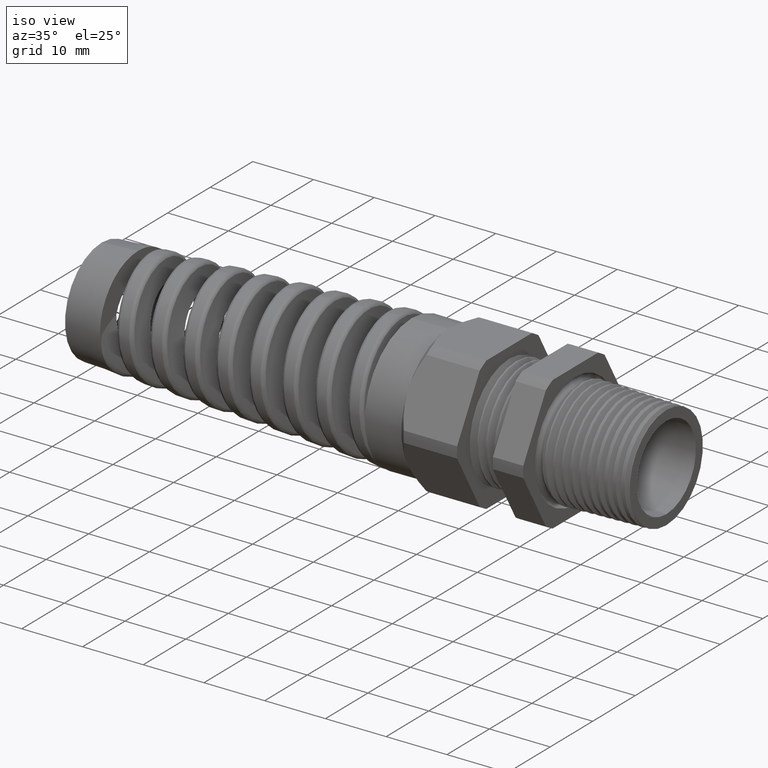
[diagram: clean part render]
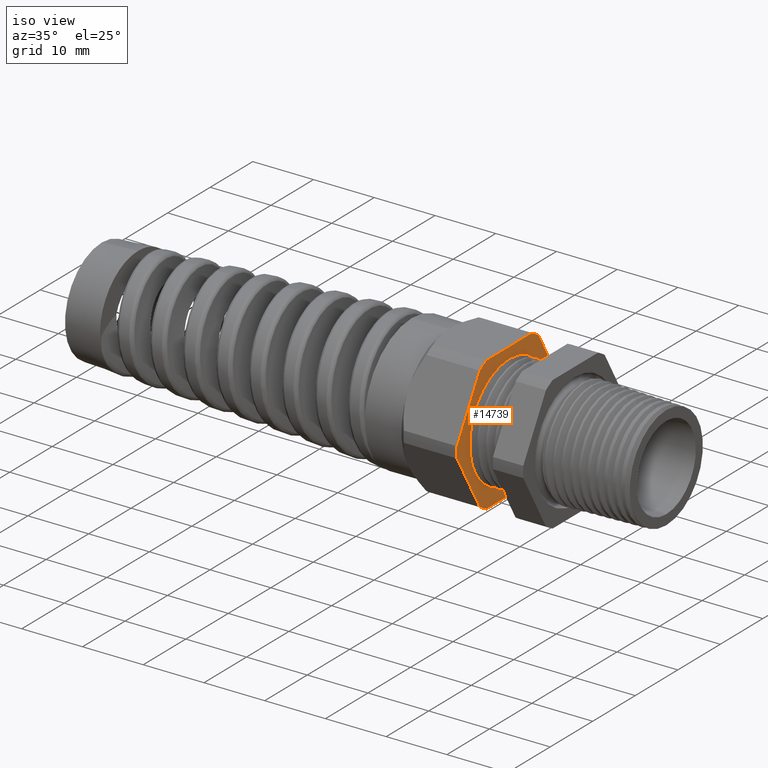
[diagram: same view with one face highlighted and labeled with its STEP entity id]
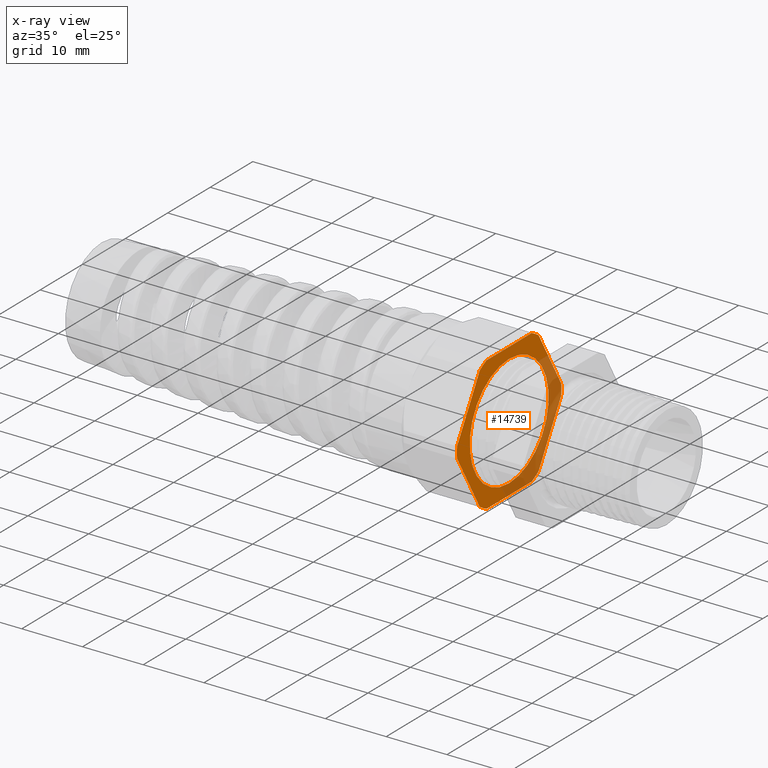
[diagram: x-ray of the same camera — body ghosted, the highlighted face saturated]
A machine part, iso view. The second image highlights one B-rep face of the part: STEP entity #14739.
The next image is the same camera in x-ray: the body ghosted, the highlighted face saturated — about 37% of this face is hidden behind the body in this view.
In plain terms, the highlighted planar face has unit normal (1, 0, 0).
Its self-contained STEP definition (entity closure, byte-faithful):
#549 = CARTESIAN_POINT ( 'NONE',  ( -0.7388188976377951800, 0.4679710506462308500, -0.05945036380933996900 ) ) ;
#550 = LINE ( 'NONE', #549, #812 ) ;
#576 = DIRECTION ( 'NONE',  ( 0.0000000000000000000, 0.0000000000000000000, -1.000000000000000000 ) ) ;
#577 = DIRECTION ( 'NONE',  ( 1.000000000000000000, 0.0000000000000000000, 0.0000000000000000000 ) ) ;
#578 = AXIS2_PLACEMENT_3D ( 'NONE', #581, #577, #576 ) ;
#579 = CIRCLE ( 'NONE', #578, 0.4828500000000000600 ) ;
#581 = CARTESIAN_POINT ( 'NONE',  ( -0.7388188976377951800, 0.0000000000000000000, 0.0000000000000000000 ) ) ;
#589 = CARTESIAN_POINT ( 'NONE',  ( -0.7388188976377951800, 0.2719366022533514200, 0.3989919884595460900 ) ) ;
#600 = DIRECTION ( 'NONE',  ( 0.0000000000000000000, -1.000000000000000000, 0.0000000000000000000 ) ) ;
#601 = VECTOR ( 'NONE', #600, 39.37007874015748100 ) ;
#608 = CARTESIAN_POINT ( 'NONE',  ( -0.7388188976377951800, 0.3649999999999999400, 0.4350000000000000000 ) ) ;
#609 = LINE ( 'NONE', #608, #601 ) ;
#622 = DIRECTION ( 'NONE',  ( 0.0000000000000000000, 0.0000000000000000000, -1.000000000000000000 ) ) ;
#623 = DIRECTION ( 'NONE',  ( 1.000000000000000000, 0.0000000000000000000, 0.0000000000000000000 ) ) ;
#624 = AXIS2_PLACEMENT_3D ( 'NONE', #631, #623, #622 ) ;
#625 = CIRCLE ( 'NONE', #624, 0.4828500000000000600 ) ;
#631 = CARTESIAN_POINT ( 'NONE',  ( -0.7388188976377951800, 0.0000000000000000000, 0.0000000000000000000 ) ) ;
#635 = DIRECTION ( 'NONE',  ( 0.0000000000000000000, -0.4999999999999998300, -0.8660254037844388200 ) ) ;
#636 = VECTOR ( 'NONE', #635, 39.37007874015748100 ) ;
#637 = CARTESIAN_POINT ( 'NONE',  ( -0.7388188976377951800, -0.2854710506462309100, 0.3755496361906598400 ) ) ;
#642 = LINE ( 'NONE', #637, #636 ) ;
#685 = DIRECTION ( 'NONE',  ( 0.0000000000000000000, 0.5000000000000000000, -0.8660254037844386000 ) ) ;
#686 = VECTOR ( 'NONE', #685, 39.37007874015748900 ) ;
#687 = CARTESIAN_POINT ( 'NONE',  ( -0.7388188976377951800, -0.2854710506462307400, -0.3755496361906600100 ) ) ;
#692 = LINE ( 'NONE', #687, #686 ) ;
#706 = DIRECTION ( 'NONE',  ( 0.0000000000000000000, 0.0000000000000000000, -1.000000000000000000 ) ) ;
#707 = DIRECTION ( 'NONE',  ( 1.000000000000000000, 0.0000000000000000000, 0.0000000000000000000 ) ) ;
#708 = CARTESIAN_POINT ( 'NONE',  ( -0.7388188976377951800, 0.0000000000000000000, 0.0000000000000000000 ) ) ;
#709 = AXIS2_PLACEMENT_3D ( 'NONE', #708, #707, #706 ) ;
#710 = CIRCLE ( 'NONE', #709, 0.4828500000000000600 ) ;
#717 = CARTESIAN_POINT ( 'NONE',  ( -0.7388188976377951800, -0.4815054990391102700, 0.03600801154045355600 ) ) ;
#734 = DIRECTION ( 'NONE',  ( 0.0000000000000000000, 1.000000000000000000, 0.0000000000000000000 ) ) ;
#735 = VECTOR ( 'NONE', #734, 39.37007874015748100 ) ;
#743 = CARTESIAN_POINT ( 'NONE',  ( -0.7388188976377951800, 0.3649999999999999400, -0.4350000000000000500 ) ) ;
#744 = LINE ( 'NONE', #743, #735 ) ;
#772 = CARTESIAN_POINT ( 'NONE',  ( -0.7388188976377951800, -0.4815054990391102700, -0.03600801154045381300 ) ) ;
#811 = DIRECTION ( 'NONE',  ( 0.0000000000000000000, 0.4999999999999997200, 0.8660254037844388200 ) ) ;
#812 = VECTOR ( 'NONE', #811, 39.37007874015748100 ) ;
#2378 = CARTESIAN_POINT ( 'NONE',  ( -0.7388188976377951800, -0.2095688967857587700, -0.4350000000000000500 ) ) ;
#2434 = CARTESIAN_POINT ( 'NONE',  ( -0.7388188976377951800, -0.2719366022533510900, -0.3989919884595464200 ) ) ;
#2435 = CARTESIAN_POINT ( 'NONE',  ( -0.7388188976377951800, 0.4815054990391102700, -0.03600801154045385500 ) ) ;
#2447 = CARTESIAN_POINT ( 'NONE',  ( -0.7388188976377951800, 0.2095688967857588500, -0.4350000000000000000 ) ) ;
#2888 = CARTESIAN_POINT ( 'NONE',  ( -0.7388188976377951800, 4.469960816887836700E-017, -0.3649999999999997700 ) ) ;
#2949 = CARTESIAN_POINT ( 'NONE',  ( -0.7388188976377951800, 0.0000000000000000000, 0.3649999999999997700 ) ) ;
#2950 = DIRECTION ( 'NONE',  ( 0.0000000000000000000, 0.0000000000000000000, -1.000000000000000000 ) ) ;
#2951 = DIRECTION ( 'NONE',  ( 1.000000000000000000, 0.0000000000000000000, 0.0000000000000000000 ) ) ;
#2952 = CARTESIAN_POINT ( 'NONE',  ( -0.7388188976377951800, 0.0000000000000000000, 0.0000000000000000000 ) ) ;
#2953 = AXIS2_PLACEMENT_3D ( 'NONE', #2952, #2951, #2950 ) ;
#2954 = CIRCLE ( 'NONE', #2953, 0.3649999999999997700 ) ;
#7127 = ORIENTED_EDGE ( 'NONE', *, *, #8766, .T. ) ;
#7137 = CARTESIAN_POINT ( 'NONE',  ( -0.7388188976377951800, 0.2095688967857588800, 0.4350000000000000000 ) ) ;
#7148 = DIRECTION ( 'NONE',  ( 0.0000000000000000000, 0.0000000000000000000, -1.000000000000000000 ) ) ;
#7149 = DIRECTION ( 'NONE',  ( 1.000000000000000000, 0.0000000000000000000, 0.0000000000000000000 ) ) ;
#7150 = CARTESIAN_POINT ( 'NONE',  ( -0.7388188976377951800, 0.0000000000000000000, 0.0000000000000000000 ) ) ;
#7151 = AXIS2_PLACEMENT_3D ( 'NONE', #7150, #7149, #7148 ) ;
#7152 = CIRCLE ( 'NONE', #7151, 0.4828500000000000000 ) ;
#7159 = CARTESIAN_POINT ( 'NONE',  ( -0.7388188976377951800, -0.2095688967857588800, 0.4349999999999999400 ) ) ;
#7184 = CARTESIAN_POINT ( 'NONE',  ( -0.7388188976377951800, -0.2719366022533514200, 0.3989919884595461400 ) ) ;
#7213 = DIRECTION ( 'NONE',  ( 0.0000000000000000000, 0.0000000000000000000, -1.000000000000000000 ) ) ;
#7214 = DIRECTION ( 'NONE',  ( 1.000000000000000000, 0.0000000000000000000, 0.0000000000000000000 ) ) ;
#7215 = CARTESIAN_POINT ( 'NONE',  ( -0.7388188976377951800, 0.0000000000000000000, 0.0000000000000000000 ) ) ;
#7216 = AXIS2_PLACEMENT_3D ( 'NONE', #7215, #7214, #7213 ) ;
#7217 = CIRCLE ( 'NONE', #7216, 0.4828500000000000600 ) ;
#7236 = DIRECTION ( 'NONE',  ( 0.0000000000000000000, -0.5000000000000000000, 0.8660254037844386000 ) ) ;
#7237 = VECTOR ( 'NONE', #7236, 39.37007874015748900 ) ;
#7238 = CARTESIAN_POINT ( 'NONE',  ( -0.7388188976377951800, 0.4679710506462308500, 0.05945036380934001800 ) ) ;
#7239 = LINE ( 'NONE', #7238, #7237 ) ;
#7266 = CARTESIAN_POINT ( 'NONE',  ( -0.7388188976377951800, 0.4815054990391102200, 0.03600801154045398000 ) ) ;
#7277 = DIRECTION ( 'NONE',  ( 0.0000000000000000000, 0.0000000000000000000, -1.000000000000000000 ) ) ;
#7278 = DIRECTION ( 'NONE',  ( 1.000000000000000000, 0.0000000000000000000, 0.0000000000000000000 ) ) ;
#7279 = CARTESIAN_POINT ( 'NONE',  ( -0.7388188976377951800, 0.0000000000000000000, 0.0000000000000000000 ) ) ;
#7280 = AXIS2_PLACEMENT_3D ( 'NONE', #7279, #7278, #7277 ) ;
#7281 = CIRCLE ( 'NONE', #7280, 0.4828500000000000000 ) ;
#7364 = ORIENTED_EDGE ( 'NONE', *, *, #8796, .T. ) ;
#7509 = ORIENTED_EDGE ( 'NONE', *, *, #8783, .T. ) ;
#7539 = CARTESIAN_POINT ( 'NONE',  ( -0.7388188976377951800, 0.2719366022533517000, -0.3989919884595459800 ) ) ;
#7722 = EDGE_LOOP ( 'NONE', ( #7723, #7127, #7509, #7364, #14838, #14836, #14837, #14834, #14921, #14924, #14833, #14846 ) ) ;
#7723 = ORIENTED_EDGE ( 'NONE', *, *, #8575, .T. ) ;
#8522 = VERTEX_POINT ( 'NONE', #2378 ) ;
#8523 = VERTEX_POINT ( 'NONE', #2447 ) ;
#8540 = VERTEX_POINT ( 'NONE', #2435 ) ;
#8543 = VERTEX_POINT ( 'NONE', #2434 ) ;
#8548 = EDGE_CURVE ( 'NONE', #8523, #8922, #579, .T. ) ;
#8575 = EDGE_CURVE ( 'NONE', #8922, #8540, #550, .T. ) ;
#8604 = VERTEX_POINT ( 'NONE', #772 ) ;
#8616 = EDGE_CURVE ( 'NONE', #8522, #8523, #744, .T. ) ;
#8653 = VERTEX_POINT ( 'NONE', #717 ) ;
#8655 = EDGE_CURVE ( 'NONE', #8543, #8522, #710, .T. ) ;
#8673 = EDGE_CURVE ( 'NONE', #8604, #8543, #692, .T. ) ;
#8718 = EDGE_CURVE ( 'NONE', #8756, #8653, #642, .T. ) ;
#8721 = EDGE_CURVE ( 'NONE', #8653, #8604, #625, .T. ) ;
#8730 = EDGE_CURVE ( 'NONE', #8751, #8740, #609, .T. ) ;
#8735 = VERTEX_POINT ( 'NONE', #589 ) ;
#8740 = VERTEX_POINT ( 'NONE', #7159 ) ;
#8746 = EDGE_CURVE ( 'NONE', #8740, #8756, #7152, .T. ) ;
#8751 = VERTEX_POINT ( 'NONE', #7137 ) ;
#8756 = VERTEX_POINT ( 'NONE', #7184 ) ;
#8766 = EDGE_CURVE ( 'NONE', #8540, #8801, #7217, .T. ) ;
#8783 = EDGE_CURVE ( 'NONE', #8801, #8735, #7239, .T. ) ;
#8796 = EDGE_CURVE ( 'NONE', #8735, #8751, #7281, .T. ) ;
#8801 = VERTEX_POINT ( 'NONE', #7266 ) ;
#8922 = VERTEX_POINT ( 'NONE', #7539 ) ;
#9024 = VERTEX_POINT ( 'NONE', #2888 ) ;
#9026 = EDGE_CURVE ( 'NONE', #9024, #9027, #2954, .T. ) ;
#9027 = VERTEX_POINT ( 'NONE', #2949 ) ;
#10112 = DIRECTION ( 'NONE',  ( 0.0000000000000000000, 0.0000000000000000000, -1.000000000000000000 ) ) ;
#10113 = DIRECTION ( 'NONE',  ( 1.000000000000000000, 0.0000000000000000000, 0.0000000000000000000 ) ) ;
#10114 = CARTESIAN_POINT ( 'NONE',  ( -0.7388188976377951800, 0.0000000000000000000, 0.0000000000000000000 ) ) ;
#10115 = AXIS2_PLACEMENT_3D ( 'NONE', #10114, #10113, #10112 ) ;
#10116 = CIRCLE ( 'NONE', #10115, 0.3649999999999997700 ) ;
#10117 = DIRECTION ( 'NONE',  ( 0.0000000000000000000, 0.0000000000000000000, -1.000000000000000000 ) ) ;
#10118 = DIRECTION ( 'NONE',  ( 1.000000000000000000, 0.0000000000000000000, 0.0000000000000000000 ) ) ;
#10119 = CARTESIAN_POINT ( 'NONE',  ( -0.7388188976377951800, 0.3649999999999999400, 0.0000000000000000000 ) ) ;
#10120 = AXIS2_PLACEMENT_3D ( 'NONE', #10119, #10118, #10117 ) ;
#10121 = PLANE ( 'NONE',  #10120 ) ;
#10122 = FACE_OUTER_BOUND ( 'NONE', #7722, .T. ) ;
#10123 = FACE_BOUND ( 'NONE', #14719, .T. ) ;
#14713 = ORIENTED_EDGE ( 'NONE', *, *, #9026, .F. ) ;
#14719 = EDGE_LOOP ( 'NONE', ( #14726, #14713 ) ) ;
#14726 = ORIENTED_EDGE ( 'NONE', *, *, #14784, .F. ) ;
#14739 = ADVANCED_FACE ( 'NONE', ( #10123, #10122 ), #10121, .T. ) ;
#14784 = EDGE_CURVE ( 'NONE', #9027, #9024, #10116, .T. ) ;
#14833 = ORIENTED_EDGE ( 'NONE', *, *, #8616, .T. ) ;
#14834 = ORIENTED_EDGE ( 'NONE', *, *, #8721, .T. ) ;
#14836 = ORIENTED_EDGE ( 'NONE', *, *, #8746, .T. ) ;
#14837 = ORIENTED_EDGE ( 'NONE', *, *, #8718, .T. ) ;
#14838 = ORIENTED_EDGE ( 'NONE', *, *, #8730, .T. ) ;
#14846 = ORIENTED_EDGE ( 'NONE', *, *, #8548, .T. ) ;
#14921 = ORIENTED_EDGE ( 'NONE', *, *, #8673, .T. ) ;
#14924 = ORIENTED_EDGE ( 'NONE', *, *, #8655, .T. ) ;